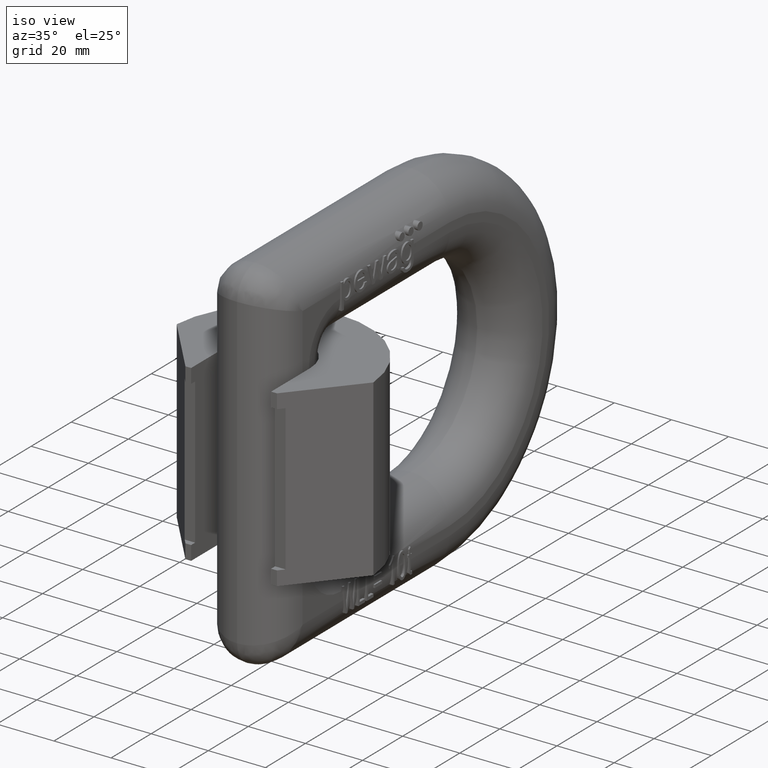
[diagram: clean part render]
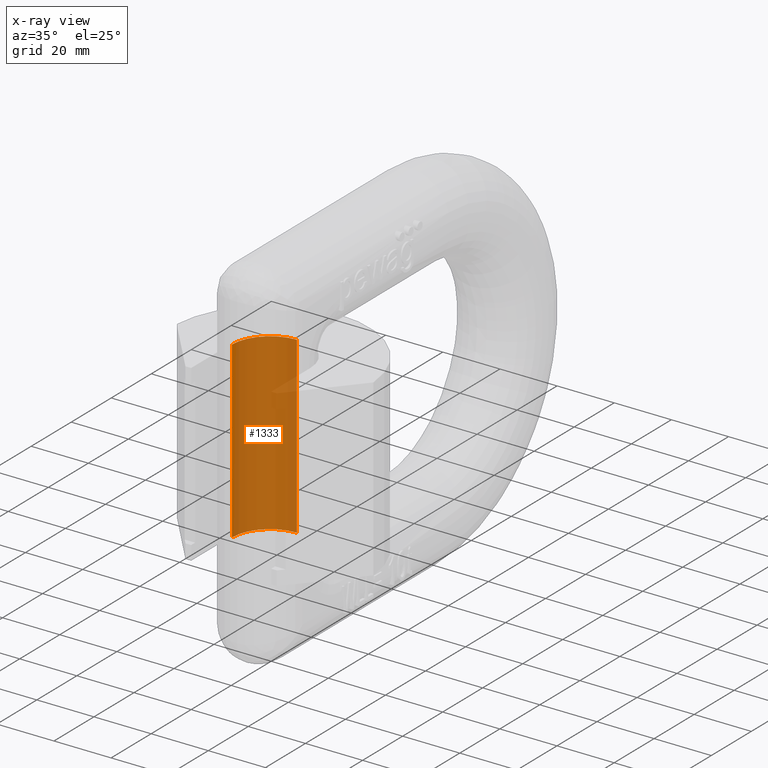
[diagram: x-ray — body ghosted, one internal face saturated and labeled with its STEP entity id]
A machine part, iso view, then the same camera in x-ray: the body is ghosted and one INTERNAL B-rep face — a face not visible from any outside direction — is saturated and labeled: STEP entity #1333.
In plain terms, the highlighted cylindrical surface (partial cylindrical patch) has radius 13.4 mm, axis along (0, 0, 1).
Its self-contained STEP definition (entity closure, byte-faithful):
#1333=ADVANCED_FACE('',(#1852),#1757,.T.);
#1757=CYLINDRICAL_SURFACE('',#9046,13.4);
#1852=FACE_OUTER_BOUND('',#2304,.T.);
#2304=EDGE_LOOP('',(#3269,#3270,#3271,#3272));
#2777=CIRCLE('',#9044,13.4);
#2778=CIRCLE('',#9045,13.4);
#3269=ORIENTED_EDGE('',*,*,#6612,.F.);
#3270=ORIENTED_EDGE('',*,*,#6325,.F.);
#3271=ORIENTED_EDGE('',*,*,#6613,.F.);
#3272=ORIENTED_EDGE('',*,*,#6361,.F.);
#5446=VERTEX_POINT('',#11123);
#5449=VERTEX_POINT('',#11128);
#5473=VERTEX_POINT('',#11200);
#5474=VERTEX_POINT('',#11202);
#6325=EDGE_CURVE('',#5449,#5446,#7619,.T.);
#6361=EDGE_CURVE('',#5473,#5474,#7642,.T.);
#6612=EDGE_CURVE('',#5446,#5473,#2777,.T.);
#6613=EDGE_CURVE('',#5474,#5449,#2778,.T.);
#7619=LINE('',#11129,#8211);
#7642=LINE('',#11201,#8234);
#8211=VECTOR('',#9458,1.);
#8234=VECTOR('',#9531,1.);
#9044=AXIS2_PLACEMENT_3D('',#12620,#9807,#9808);
#9045=AXIS2_PLACEMENT_3D('',#12621,#9809,#9810);
#9046=AXIS2_PLACEMENT_3D('',#12622,#9811,#9812);
#9458=DIRECTION('',(0.,0.,1.));
#9531=DIRECTION('',(0.,0.,-1.));
#9807=DIRECTION('',(0.,0.,1.));
#9808=DIRECTION('',(1.,0.,0.));
#9809=DIRECTION('',(0.,2.84805346802162E-15,-1.));
#9810=DIRECTION('',(0.,1.,2.84805346802162E-15));
#9811=DIRECTION('',(0.,0.,1.));
#9812=DIRECTION('',(1.,0.,0.));
#11123=CARTESIAN_POINT('',(-0.0999999999999994,33.,30.5));
#11128=CARTESIAN_POINT('',(-0.0999999999999994,33.,-30.5));
#11129=CARTESIAN_POINT('',(-0.0999999999999994,33.,30.5));
#11200=CARTESIAN_POINT('',(-13.5,19.6,30.5));
#11201=CARTESIAN_POINT('',(-13.5,19.6,-30.5));
#11202=CARTESIAN_POINT('',(-13.5,19.6,-30.5));
#12620=CARTESIAN_POINT('',(-0.0999999999999994,19.6,30.5));
#12621=CARTESIAN_POINT('',(-0.0999999999999994,19.6,-30.5));
#12622=CARTESIAN_POINT('',(-0.0999999999999994,19.6,54.));